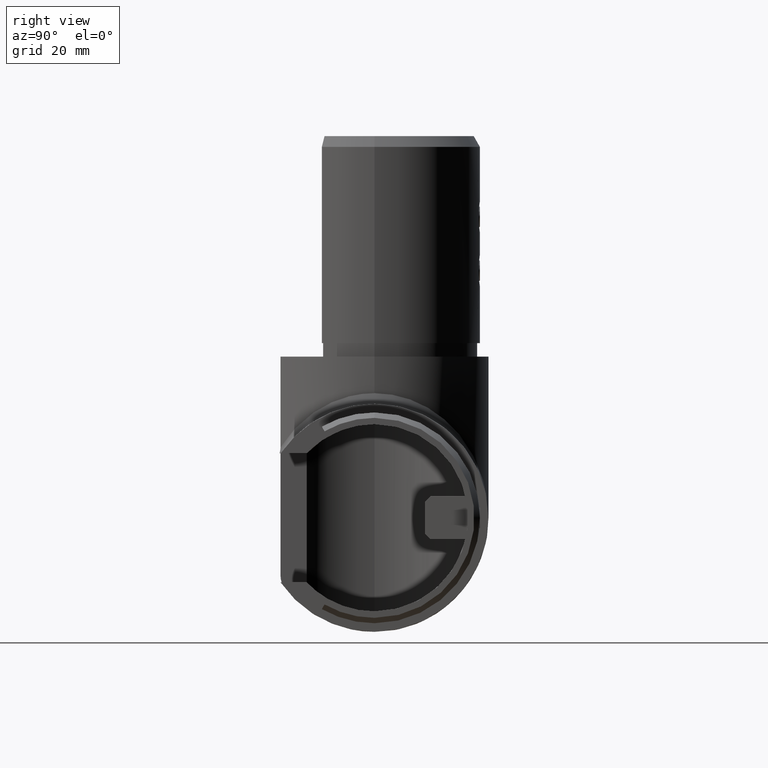
[diagram: clean part render]
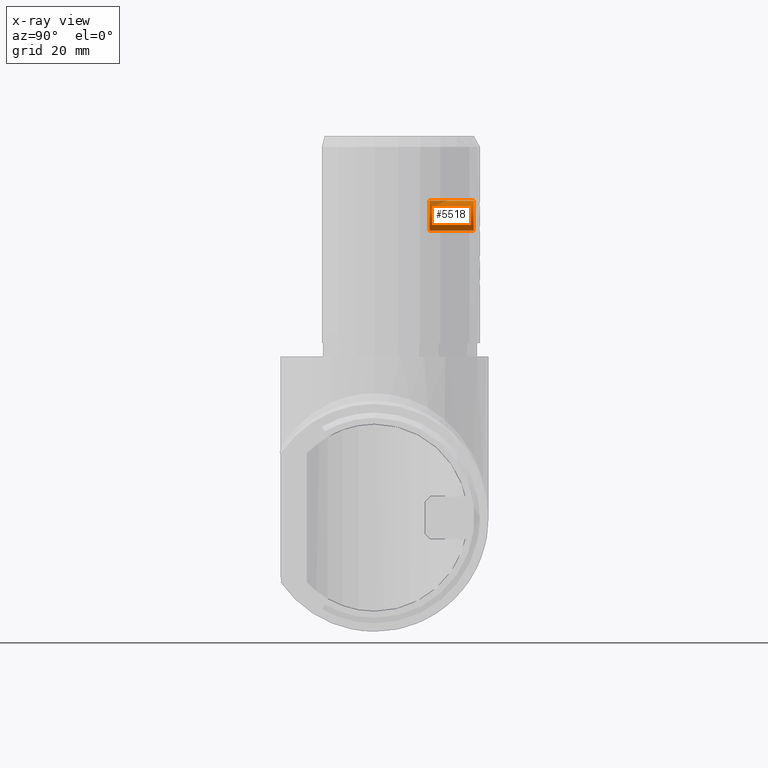
[diagram: x-ray — body ghosted, one internal face saturated and labeled with its STEP entity id]
A machine part, right view, then the same camera in x-ray: the body is ghosted and one INTERNAL B-rep face — a face not visible from any outside direction — is saturated and labeled: STEP entity #5518.
In plain terms, the highlighted cylindrical surface (edge-blend (fillet) strip) has radius 3 mm, axis along (0, 1, -0).
Its self-contained STEP definition (entity closure, byte-faithful):
#295 = EDGE_LOOP ( 'NONE', ( #2100, #13421, #18533, #18954, #6996 ) ) ;
#548 = DIRECTION ( 'NONE',  ( -1.000000000000000000, 3.946946314475947600E-017, -0.0000000000000000000 ) ) ;
#581 = DIRECTION ( 'NONE',  ( -7.228014483236695800E-017, -1.000000000000000000, 0.0000000000000000000 ) ) ;
#780 = CIRCLE ( 'NONE', #1778, 3.000000000000000400 ) ;
#800 = CIRCLE ( 'NONE', #19460, 3.000000000000000000 ) ;
#1728 = VERTEX_POINT ( 'NONE', #15675 ) ;
#1778 = AXIS2_PLACEMENT_3D ( 'NONE', #2482, #17117, #10690 ) ;
#2100 = ORIENTED_EDGE ( 'NONE', *, *, #15585, .T. ) ;
#2173 = DIRECTION ( 'NONE',  ( -1.000000000000000000, 3.946946314475947600E-017, -0.0000000000000000000 ) ) ;
#2482 = CARTESIAN_POINT ( 'NONE',  ( 9.399999999999998600, 0.0000000000000000000, 0.0000000000000000000 ) ) ;
#2857 = CARTESIAN_POINT ( 'NONE',  ( 10.00000000000000000, 0.0000000000000000000, 3.000000000000000400 ) ) ;
#3531 = AXIS2_PLACEMENT_3D ( 'NONE', #4216, #10990, #15697 ) ;
#4216 = CARTESIAN_POINT ( 'NONE',  ( 10.00000000000000000, 0.0000000000000000000, 0.0000000000000000000 ) ) ;
#5263 = VECTOR ( 'NONE', #7494, 1000.000000000000000 ) ;
#5332 = VECTOR ( 'NONE', #11001, 1000.000000000000000 ) ;
#5371 = EDGE_CURVE ( 'NONE', #12589, #1728, #8021, .T. ) ;
#5518 = ADVANCED_FACE ( 'NONE', ( #20740 ), #8523, .T. ) ;
#5740 = CARTESIAN_POINT ( 'NONE',  ( 1.149999999999987500, 0.0000000000000000000, 3.000000000000000000 ) ) ;
#5743 = CARTESIAN_POINT ( 'NONE',  ( 9.399999999999998600, 0.0000000000000000000, 3.000000000000000400 ) ) ;
#6996 = ORIENTED_EDGE ( 'NONE', *, *, #21168, .F. ) ;
#7494 = DIRECTION ( 'NONE',  ( -1.000000000000000000, -0.0000000000000000000, -0.0000000000000000000 ) ) ;
#8021 = CIRCLE ( 'NONE', #16603, 3.000000000000000000 ) ;
#8523 = CYLINDRICAL_SURFACE ( 'NONE', #3531, 3.000000000000000400 ) ;
#8640 = LINE ( 'NONE', #17695, #5263 ) ;
#10260 = CARTESIAN_POINT ( 'NONE',  ( 1.149999999999987500, 3.673940397442060400E-016, -3.000000000000000000 ) ) ;
#10365 = EDGE_CURVE ( 'NONE', #15090, #20779, #8640, .T. ) ;
#10690 = DIRECTION ( 'NONE',  ( 0.0000000000000000000, 0.0000000000000000000, -1.000000000000000000 ) ) ;
#10990 = DIRECTION ( 'NONE',  ( -1.000000000000000000, -0.0000000000000000000, -0.0000000000000000000 ) ) ;
#11001 = DIRECTION ( 'NONE',  ( -1.000000000000000000, -0.0000000000000000000, -0.0000000000000000000 ) ) ;
#11302 = VERTEX_POINT ( 'NONE', #5743 ) ;
#12589 = VERTEX_POINT ( 'NONE', #5740 ) ;
#12984 = EDGE_CURVE ( 'NONE', #1728, #20779, #800, .T. ) ;
#13421 = ORIENTED_EDGE ( 'NONE', *, *, #10365, .T. ) ;
#14076 = CARTESIAN_POINT ( 'NONE',  ( 1.149999999999987500, -4.538988261647289600E-017, 0.0000000000000000000 ) ) ;
#15090 = VERTEX_POINT ( 'NONE', #20968 ) ;
#15396 = CARTESIAN_POINT ( 'NONE',  ( 1.149999999999987500, -4.538988261647289600E-017, 0.0000000000000000000 ) ) ;
#15585 = EDGE_CURVE ( 'NONE', #11302, #15090, #780, .T. ) ;
#15675 = CARTESIAN_POINT ( 'NONE',  ( 1.149999999999987500, 3.000000000000000000, 0.0000000000000000000 ) ) ;
#15697 = DIRECTION ( 'NONE',  ( 0.0000000000000000000, 0.0000000000000000000, 1.000000000000000000 ) ) ;
#16603 = AXIS2_PLACEMENT_3D ( 'NONE', #15396, #2173, #581 ) ;
#17117 = DIRECTION ( 'NONE',  ( -1.000000000000000000, 0.0000000000000000000, 0.0000000000000000000 ) ) ;
#17370 = DIRECTION ( 'NONE',  ( -7.228014483236695800E-017, -1.000000000000000000, 0.0000000000000000000 ) ) ;
#17695 = CARTESIAN_POINT ( 'NONE',  ( 10.00000000000000000, 3.673940397442060400E-016, -3.000000000000000400 ) ) ;
#18533 = ORIENTED_EDGE ( 'NONE', *, *, #12984, .F. ) ;
#18954 = ORIENTED_EDGE ( 'NONE', *, *, #5371, .F. ) ;
#19460 = AXIS2_PLACEMENT_3D ( 'NONE', #14076, #548, #17370 ) ;
#19895 = LINE ( 'NONE', #2857, #5332 ) ;
#20740 = FACE_OUTER_BOUND ( 'NONE', #295, .T. ) ;
#20779 = VERTEX_POINT ( 'NONE', #10260 ) ;
#20968 = CARTESIAN_POINT ( 'NONE',  ( 9.399999999999998600, 3.673940397442060400E-016, -3.000000000000000400 ) ) ;
#21168 = EDGE_CURVE ( 'NONE', #11302, #12589, #19895, .T. ) ;